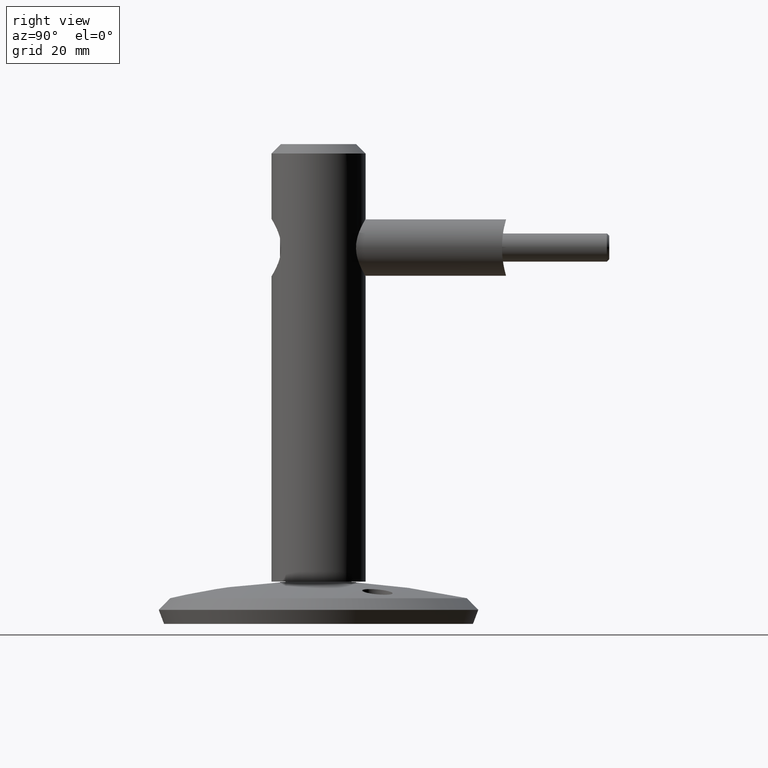
[diagram: clean part render]
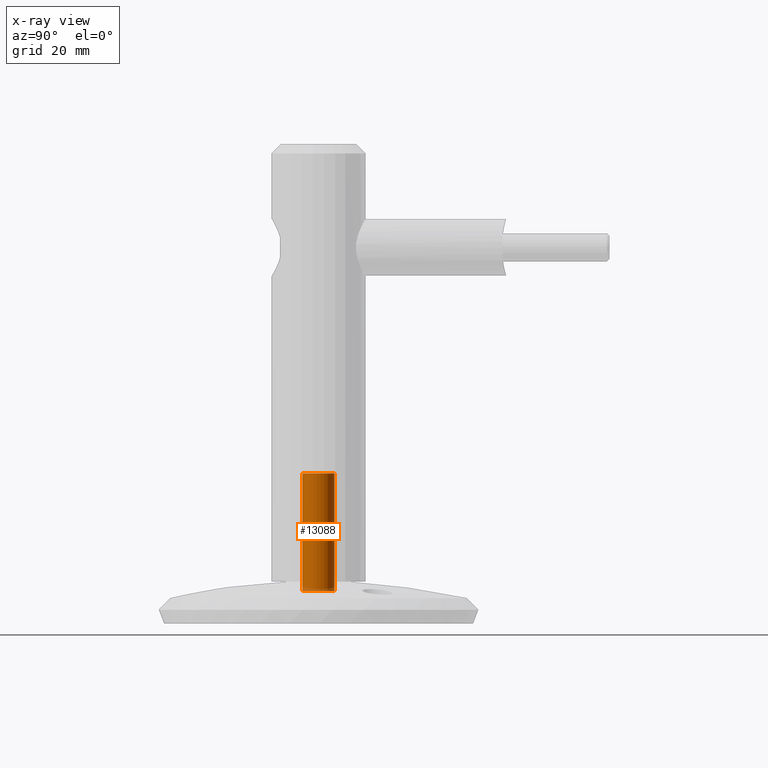
[diagram: x-ray — body ghosted, one internal face saturated and labeled with its STEP entity id]
A machine part, right view, then the same camera in x-ray: the body is ghosted and one INTERNAL B-rep face — a face not visible from any outside direction — is saturated and labeled: STEP entity #13088.
In plain terms, the highlighted cylindrical surface (bore or boss wall) has radius 3.4 mm, axis along (-0, -0, -1).
Its self-contained STEP definition (entity closure, byte-faithful):
#125 = CARTESIAN_POINT ( 'NONE',  ( 0.000000000000000000, 0.000000000000000000, 0.000000000000000000 ) ) ;
#600 = EDGE_LOOP ( 'NONE', ( #1133 ) ) ;
#1133 = ORIENTED_EDGE ( 'NONE', *, *, #7134, .T. ) ;
#1744 = DIRECTION ( 'NONE',  ( 0.000000000000000000, 1.000000000000000000, 0.000000000000000000 ) ) ;
#2334 = VERTEX_POINT ( 'NONE', #8852 ) ;
#2592 = DIRECTION ( 'NONE',  ( -0.000000000000000000, -9.130123557772669567E-18, -1.000000000000000000 ) ) ;
#4004 = AXIS2_PLACEMENT_3D ( 'NONE', #14490, #8912, #1744 ) ;
#4324 = FACE_OUTER_BOUND ( 'NONE', #10275, .T. ) ;
#4453 = AXIS2_PLACEMENT_3D ( 'NONE', #125, #8040, #6876 ) ;
#4734 = CARTESIAN_POINT ( 'NONE',  ( 0.000000000000000000, 0.000000000000000000, 0.000000000000000000 ) ) ;
#5504 = CIRCLE ( 'NONE', #4453, 3.399999999999998579 ) ;
#6359 = VERTEX_POINT ( 'NONE', #9953 ) ;
#6641 = AXIS2_PLACEMENT_3D ( 'NONE', #4734, #2592, #9559 ) ;
#6876 = DIRECTION ( 'NONE',  ( 0.000000000000000000, 1.000000000000000000, -9.130123557772669567E-18 ) ) ;
#7134 = EDGE_CURVE ( 'NONE', #2334, #2334, #5504, .T. ) ;
#8040 = DIRECTION ( 'NONE',  ( -0.000000000000000000, -9.130123557772669567E-18, -1.000000000000000000 ) ) ;
#8180 = CIRCLE ( 'NONE', #4004, 3.399999999999994138 ) ;
#8852 = CARTESIAN_POINT ( 'NONE',  ( 0.000000000000000000, 3.399999999999998579, -3.104242009642706297E-17 ) ) ;
#8912 = DIRECTION ( 'NONE',  ( -0.000000000000000000, -9.130123557772669567E-18, -1.000000000000000000 ) ) ;
#9559 = DIRECTION ( 'NONE',  ( 0.000000000000000000, 1.000000000000000000, -9.130123557772669567E-18 ) ) ;
#9953 = CARTESIAN_POINT ( 'NONE',  ( 0.000000000000000000, 3.399999999999994582, 25.00000000000000000 ) ) ;
#10275 = EDGE_LOOP ( 'NONE', ( #12766 ) ) ;
#12383 = EDGE_CURVE ( 'NONE', #6359, #6359, #8180, .T. ) ;
#12766 = ORIENTED_EDGE ( 'NONE', *, *, #12383, .F. ) ;
#13088 = ADVANCED_FACE ( 'NONE', ( #4324, #14516 ), #13588, .F. ) ;
#13588 = CYLINDRICAL_SURFACE ( 'NONE', #6641, 3.399999999999996358 ) ;
#14490 = CARTESIAN_POINT ( 'NONE',  ( 0.000000000000000000, 2.282530889443170473E-16, 25.00000000000000000 ) ) ;
#14516 = FACE_OUTER_BOUND ( 'NONE', #600, .T. ) ;